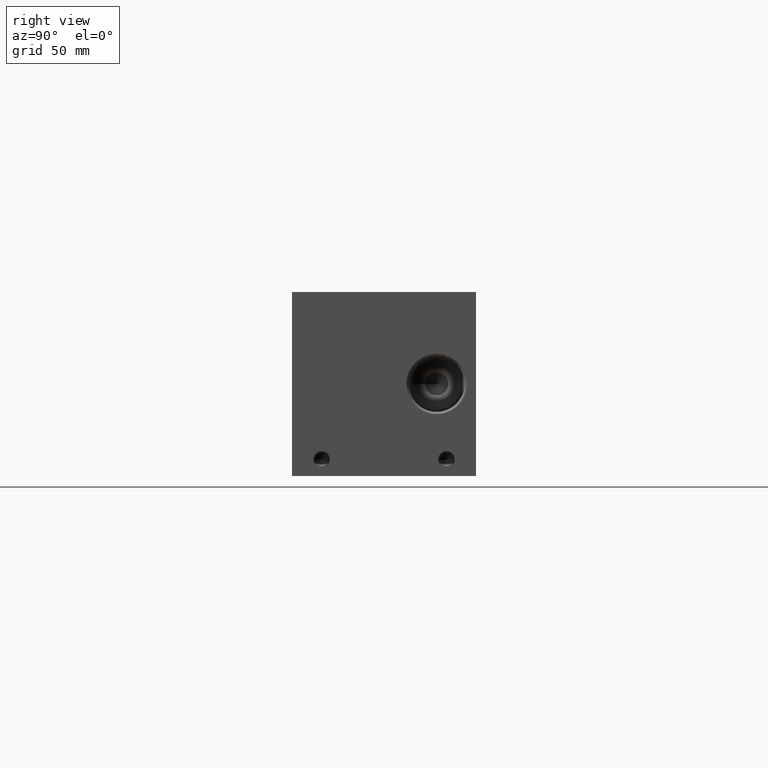
[diagram: clean part render]
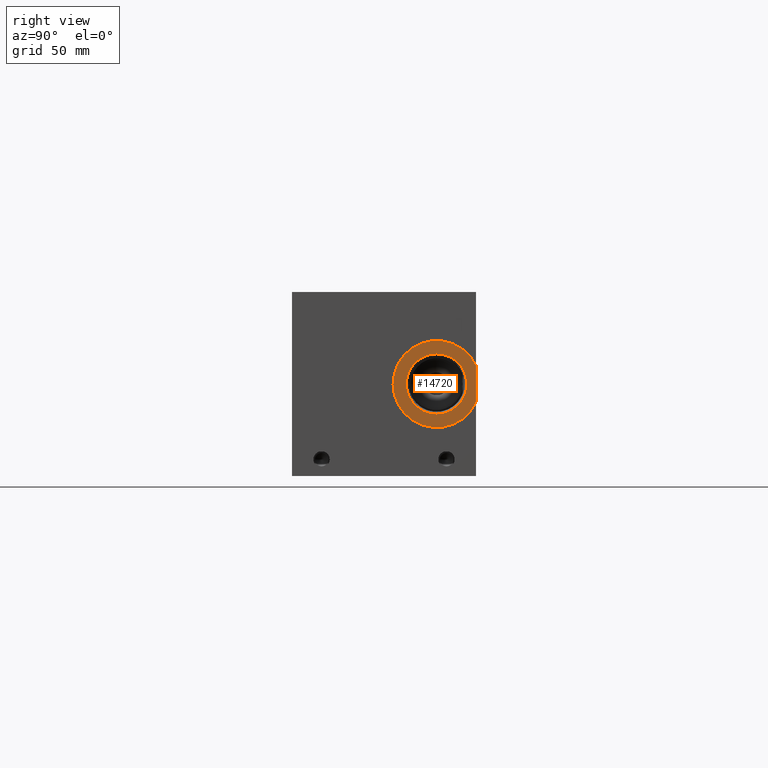
[diagram: same view with one face highlighted and labeled with its STEP entity id]
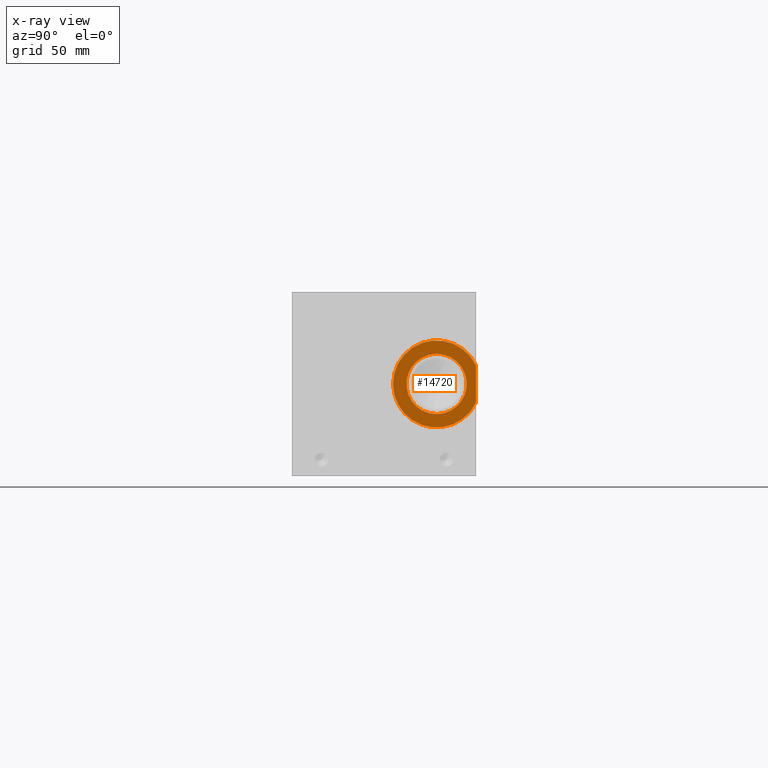
[diagram: x-ray of the same camera — body ghosted, the highlighted face saturated]
A machine part, right view. The second image highlights one B-rep face of the part: STEP entity #14720.
The next image is the same camera in x-ray: the body ghosted, the highlighted face saturated — about 0% of this face is hidden behind the body in this view.
In plain terms, the highlighted planar face has unit normal (-1, 0, 0).
Its self-contained STEP definition (entity closure, byte-faithful):
#244=CIRCLE('',#15365,21.0185);
#246=CIRCLE('',#15368,14.5923);
#247=CIRCLE('',#15369,14.5923);
#686=FACE_BOUND('',#2692,.T.);
#1852=FACE_OUTER_BOUND('',#2691,.T.);
#2691=EDGE_LOOP('',(#12068,#12069));
#2692=EDGE_LOOP('',(#12070,#12071));
#4103=LINE('',#24729,#5399);
#5399=VECTOR('',#17886,10.);
#6603=VERTEX_POINT('',#24720);
#6605=VERTEX_POINT('',#24723);
#6607=VERTEX_POINT('',#24730);
#6608=VERTEX_POINT('',#24731);
#8536=EDGE_CURVE('',#6603,#6605,#244,.T.);
#8539=EDGE_CURVE('',#6605,#6603,#4103,.T.);
#8540=EDGE_CURVE('',#6607,#6608,#246,.T.);
#8541=EDGE_CURVE('',#6608,#6607,#247,.T.);
#12068=ORIENTED_EDGE('',*,*,#8539,.F.);
#12069=ORIENTED_EDGE('',*,*,#8536,.F.);
#12070=ORIENTED_EDGE('',*,*,#8540,.T.);
#12071=ORIENTED_EDGE('',*,*,#8541,.T.);
#13614=PLANE('',#15367);
#14720=ADVANCED_FACE('',(#1852,#686),#13614,.F.);
#15365=AXIS2_PLACEMENT_3D('',#24724,#17879,#17880);
#15367=AXIS2_PLACEMENT_3D('',#24728,#17884,#17885);
#15368=AXIS2_PLACEMENT_3D('',#24732,#17887,#17888);
#15369=AXIS2_PLACEMENT_3D('',#24733,#17889,#17890);
#17879=DIRECTION('center_axis',(-1.,0.,0.));
#17880=DIRECTION('ref_axis',(0.,0.,1.));
#17884=DIRECTION('center_axis',(-1.,0.,0.));
#17885=DIRECTION('ref_axis',(0.,0.,1.));
#17886=DIRECTION('',(0.,0.,-1.));
#17887=DIRECTION('center_axis',(-1.,0.,0.));
#17888=DIRECTION('ref_axis',(0.,0.,1.));
#17889=DIRECTION('center_axis',(-1.,0.,0.));
#17890=DIRECTION('ref_axis',(0.,0.,1.));
#24720=CARTESIAN_POINT('',(329.4126,88.9,35.5688490469985));
#24723=CARTESIAN_POINT('',(329.4126,88.9,53.3311509530015));
#24724=CARTESIAN_POINT('Origin',(329.4126,69.85,44.45));
#24728=CARTESIAN_POINT('Origin',(329.4126,69.85,29.8577));
#24729=CARTESIAN_POINT('',(329.4126,88.9,14.92885));
#24730=CARTESIAN_POINT('',(329.4126,69.85,29.8577));
#24731=CARTESIAN_POINT('',(329.4126,69.85,59.0423));
#24732=CARTESIAN_POINT('Origin',(329.4126,69.85,44.45));
#24733=CARTESIAN_POINT('Origin',(329.4126,69.85,44.45));